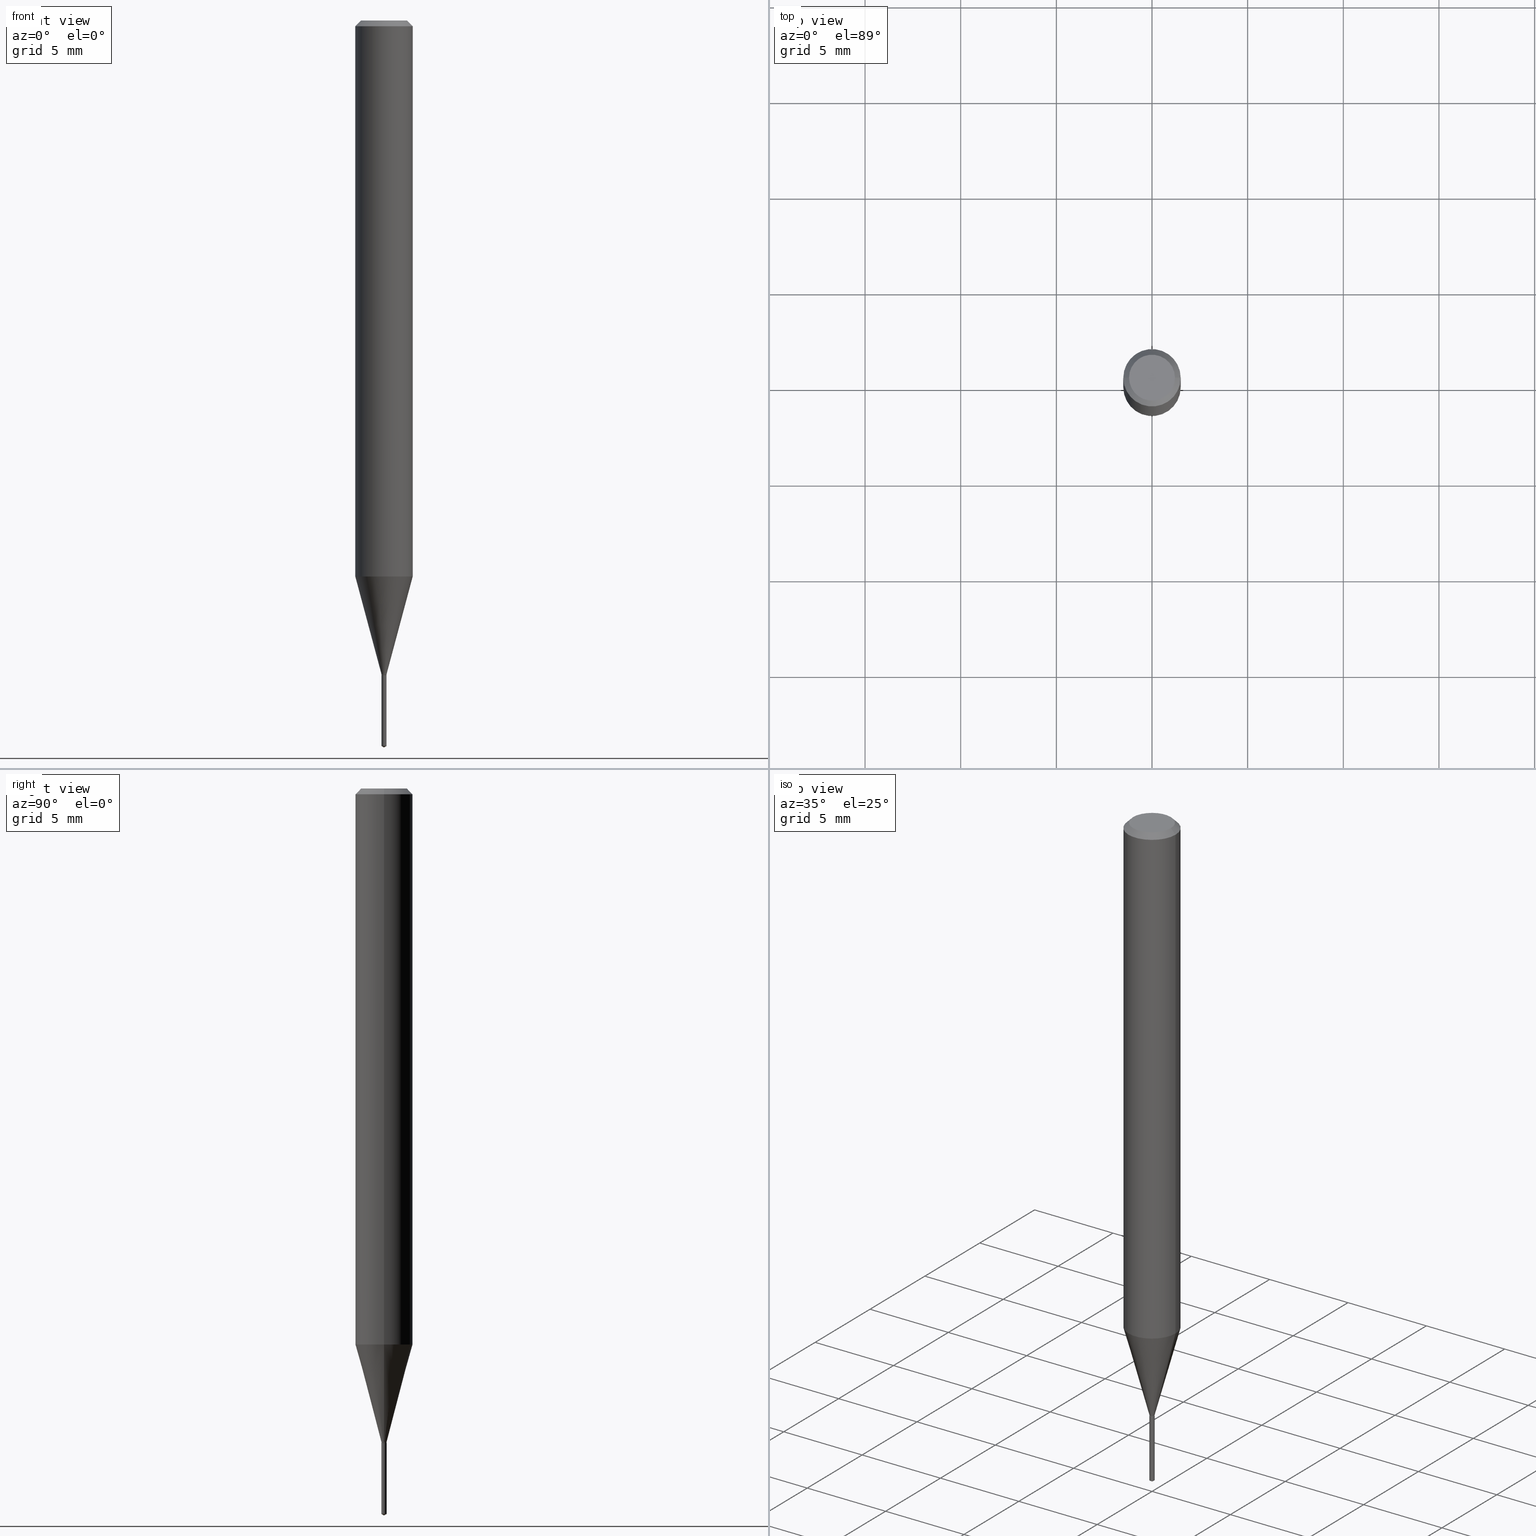
[diagram: canonical four-view strip — front | top / right | iso, engineering-drawing reading convention]
A machine part, canonical four-view strip (front | top / right | iso — engineering-drawing reading convention). The complete STEP part file that produces these views, byte-faithful:
ISO-10303-21;
HEADER;
FILE_DESCRIPTION (( 'STEP AP203' ),
    '1' );
FILE_NAME ('08251.STEP',
    '2024-04-24T13:56:38',
    ( '' ),
    ( '' ),
    'SwSTEP 2.0',
    'SolidWorks 2023',
    '' );
FILE_SCHEMA (( 'CONFIG_CONTROL_DESIGN' ));
ENDSEC;

DATA;
#1 = CONICAL_SURFACE ( 'NONE', #304, 0.005300000000000000891, 0.2617993877991500740 ) ;
#2 = AXIS2_PLACEMENT_3D ( 'NONE', #376, #185, #219 ) ;
#3 = ORIENTED_EDGE ( 'NONE', *, *, #51, .F. ) ;
#4 = CARTESIAN_POINT ( 'NONE',  ( -9.243706076077827560E-28, 1.324977446606160207E-13, 37.87397874015748300 ) ) ;
#5 =( NAMED_UNIT ( * ) SI_UNIT ( $, .STERADIAN. ) SOLID_ANGLE_UNIT ( ) );
#6 = VERTEX_POINT ( 'NONE', #46 ) ;
#7 = DIRECTION ( 'NONE',  ( -2.445468806185136597E-29, 3.491481338843145583E-15, 1.000000000000000000 ) ) ;
#8 = ORIENTED_EDGE ( 'NONE', *, *, #466, .T. ) ;
#9 = VECTOR ( 'NONE', #86, 39.37007874015747433 ) ;
#10 = EDGE_CURVE ( 'NONE', #460, #453, #215, .T. ) ;
#11 = CONICAL_SURFACE ( 'NONE', #127, 0.05904999999999999832, 0.7853981633974452814 ) ;
#12 = DIRECTION ( 'NONE',  ( -2.445468806185136597E-29, 3.491481338843145583E-15, 1.000000000000000000 ) ) ;
#13 =( CONVERSION_BASED_UNIT ( 'INCH', #428 ) LENGTH_UNIT ( ) NAMED_UNIT ( #345 ) );
#14 = ORIENTED_EDGE ( 'NONE', *, *, #147, .T. ) ;
#15 = DIRECTION ( 'NONE',  ( -2.445468806185136597E-29, 3.491481338843145583E-15, 1.000000000000000000 ) ) ;
#16 = COORDINATED_UNIVERSAL_TIME_OFFSET ( 5, 0, .BEHIND. ) ;
#17 = ORIENTED_EDGE ( 'NONE', *, *, #410, .F. ) ;
#18 = PLANE ( 'NONE',  #472 ) ;
#19 = EDGE_CURVE ( 'NONE', #437, #168, #110, .T. ) ;
#20 = PERSON_AND_ORGANIZATION ( #152, #301 ) ;
#21 = EDGE_LOOP ( 'NONE', ( #91, #379, #171, #382 ) ) ;
#22 = PRODUCT_DEFINITION_FORMATION_WITH_SPECIFIED_SOURCE ( 'ANY', '', #275, .NOT_KNOWN. ) ;
#23 = CARTESIAN_POINT ( 'NONE',  ( 3.651701478754116394E-29, -5.233578651353380400E-15, -1.496099999999999985 ) ) ;
#24 = SHAPE_DEFINITION_REPRESENTATION ( #316, #328 ) ;
#25 = CARTESIAN_POINT ( 'NONE',  ( -0.004800000000000000447, -4.664524344261699084E-15, -1.346499999999999586 ) ) ;
#26 = PERSON_AND_ORGANIZATION ( #152, #301 ) ;
#27 = DIRECTION ( 'NONE',  ( 1.000000000000000000, -6.982962677686350330E-15, 0.000000000000000000 ) ) ;
#28 = DATE_AND_TIME ( #53, #179 ) ;
#29 = DIRECTION ( 'NONE',  ( -2.445468806185136597E-29, 3.491481338843145583E-15, 1.000000000000000000 ) ) ;
#30 = EDGE_CURVE ( 'NONE', #343, #54, #137, .T. ) ;
#31 = CIRCLE ( 'NONE', #210, 0.005300000000000000891 ) ;
#32 = CARTESIAN_POINT ( 'NONE',  ( 0.004800000000000000447, -4.734797843605188150E-15, -1.346499999999999586 ) ) ;
#33 = ADVANCED_FACE ( 'NONE', ( #174 ), #1, .T. ) ;
#34 = CARTESIAN_POINT ( 'NONE',  ( -3.700970219170428424E-17, -0.005300000000004701992, -1.346500000000000030 ) ) ;
#35 = AXIS2_PLACEMENT_3D ( 'NONE', #52, #463, #201 ) ;
#36 = SECURITY_CLASSIFICATION ( '', '', #400 ) ;
#37 = EDGE_LOOP ( 'NONE', ( #8, #322 ) ) ;
#38 = CARTESIAN_POINT ( 'NONE',  ( 3.765876499531823880E-17, 0.005299999999995298923, -1.346500000000000030 ) ) ;
#39 = ORIENTED_EDGE ( 'NONE', *, *, #274, .T. ) ;
#40 = AXIS2_PLACEMENT_3D ( 'NONE', #255, #287, #474 ) ;
#41 = ORIENTED_EDGE ( 'NONE', *, *, #356, .T. ) ;
#42 = FACE_OUTER_BOUND ( 'NONE', #417, .T. ) ;
#43 = LINE ( 'NONE', #347, #193 ) ;
#44 = ORIENTED_EDGE ( 'NONE', *, *, #217, .F. ) ;
#45 = CYLINDRICAL_SURFACE ( 'NONE', #192, 0.05905000000000006771 ) ;
#46 = CARTESIAN_POINT ( 'NONE',  ( 3.651701478754116394E-29, -5.233578651353380400E-15, -1.496099999999999985 ) ) ;
#47 = AXIS2_PLACEMENT_3D ( 'NONE', #435, #7, #134 ) ;
#48 = DIRECTION ( 'NONE',  ( 0.2588190451025213501, 1.565188264969621968E-15, 0.9659258262890682012 ) ) ;
#49 = ORIENTED_EDGE ( 'NONE', *, *, #119, .F. ) ;
#50 = ORIENTED_EDGE ( 'NONE', *, *, #331, .F. ) ;
#51 = EDGE_CURVE ( 'NONE', #54, #343, #187, .T. ) ;
#52 = CARTESIAN_POINT ( 'NONE',  ( 5.680607918532201956E-28, 7.193274794951707985E-14, -1.346500000000000030 ) ) ;
#53 = CALENDAR_DATE ( 2024, 24, 4 ) ;
#54 = VERTEX_POINT ( 'NONE', #144 ) ;
#55 = DIRECTION ( 'NONE',  ( -2.445468806185136597E-29, 3.491481338843145583E-15, 1.000000000000000000 ) ) ;
#56 = PERSON_AND_ORGANIZATION_ROLE ( 'classification_officer' ) ;
#57 = DIRECTION ( 'NONE',  ( 1.000000000000000000, -6.982962677686350330E-15, 0.000000000000000000 ) ) ;
#58 = AXIS2_PLACEMENT_3D ( 'NONE', #95, #389, #270 ) ;
#59 = LOCAL_TIME ( 9, 56, 38.00000000000000000, #405 ) ;
#60 = CARTESIAN_POINT ( 'NONE',  ( -0.05905000000000006771, 4.195754854663396409E-16, -2.904631170795525045E-30 ) ) ;
#61 = CALENDAR_DATE ( 2024, 24, 4 ) ;
#62 = DIRECTION ( 'NONE',  ( -6.982962677686265133E-15, -1.000000000000000000, 0.000000000000000000 ) ) ;
#63 = EDGE_CURVE ( 'NONE', #168, #437, #76, .T. ) ;
#64 = CARTESIAN_POINT ( 'NONE',  ( 2.798355503914224078E-29, -3.995310018534680444E-15, -1.144302269093172786 ) ) ;
#65 = PLANE ( 'NONE',  #162 ) ;
#66 = DIRECTION ( 'NONE',  ( -1.000000000000000000, 6.982962677686266711E-15, 0.000000000000000000 ) ) ;
#67 = CARTESIAN_POINT ( 'NONE',  ( 3.292823747528286589E-29, -4.701279622752295282E-15, -1.346500000000000030 ) ) ;
#68 = DIRECTION ( 'NONE',  ( -2.440813768300325128E-29, 3.498147618042497959E-15, 1.000000000000000000 ) ) ;
#69 = AXIS2_PLACEMENT_3D ( 'NONE', #350, #15, #438 ) ;
#70 = AXIS2_PLACEMENT_3D ( 'NONE', #420, #308, #424 ) ;
#71 = CARTESIAN_POINT ( 'NONE',  ( 0.05904999999999999832, -4.535783407291118600E-16, -0.01181000000000007044 ) ) ;
#72 = APPROVAL ( #329, 'UNSPECIFIED' ) ;
#73 = FACE_OUTER_BOUND ( 'NONE', #249, .T. ) ;
#74 =( LENGTH_UNIT ( ) NAMED_UNIT ( * ) SI_UNIT ( $, .METRE. ) );
#75 = ORIENTED_EDGE ( 'NONE', *, *, #367, .T. ) ;
#76 = CIRCLE ( 'NONE', #299, 0.04724000000000000421 ) ;
#77 = ORIENTED_EDGE ( 'NONE', *, *, #395, .F. ) ;
#78 =( NAMED_UNIT ( * ) PLANE_ANGLE_UNIT ( ) SI_UNIT ( $, .RADIAN. ) );
#79 = ADVANCED_FACE ( 'NONE', ( #327 ), #154, .T. ) ;
#80 = VERTEX_POINT ( 'NONE', #32 ) ;
#81 = CARTESIAN_POINT ( 'NONE',  ( 0.05904999999999999832, -4.463468013801466955E-16, -0.01181000000000007044 ) ) ;
#82 = DIRECTION ( 'NONE',  ( -6.982962677686265133E-15, -1.000000000000000000, 3.468864327941663240E-15 ) ) ;
#83 = ORIENTED_EDGE ( 'NONE', *, *, #142, .T. ) ;
#84 = AXIS2_PLACEMENT_3D ( 'NONE', #64, #296, #371 ) ;
#85 = PRODUCT_RELATED_PRODUCT_CATEGORY ( 'detail', '', ( #275 ) ) ;
#86 = DIRECTION ( 'NONE',  ( -0.2588190451025213501, 5.211531920934551042E-15, 0.9659258262890682012 ) ) ;
#87 = DIRECTION ( 'NONE',  ( -6.982962677686265133E-15, -1.000000000000000000, 0.000000000000000000 ) ) ;
#88 = ORIENTED_EDGE ( 'NONE', *, *, #234, .F. ) ;
#89 = LINE ( 'NONE', #161, #222 ) ;
#90 = DATE_AND_TIME ( #212, #305 ) ;
#91 = ORIENTED_EDGE ( 'NONE', *, *, #19, .F. ) ;
#92 = ADVANCED_FACE ( 'NONE', ( #366 ), #65, .F. ) ;
#93 = AXIS2_PLACEMENT_3D ( 'NONE', #423, #12, #236 ) ;
#94 = VECTOR ( 'NONE', #482, 39.37007874015748143 ) ;
#95 = CARTESIAN_POINT ( 'NONE',  ( 3.650196566245729172E-29, -5.213462440952350425E-15, -1.492915438719153887 ) ) ;
#96 = PERSON_AND_ORGANIZATION_ROLE ( 'creator' ) ;
#97 = DIRECTION ( 'NONE',  ( 2.438088387897960049E-29, -3.491481338843145188E-15, -1.000000000000000000 ) ) ;
#98 = COORDINATED_UNIVERSAL_TIME_OFFSET ( 5, 0, .BEHIND. ) ;
#99 = CARTESIAN_POINT ( 'NONE',  ( -0.05904999999999999832, 3.711095515056362547E-16, -0.01181000000000007044 ) ) ;
#100 = CARTESIAN_POINT ( 'NONE',  ( 3.292823747528286589E-29, -4.701279622752295282E-15, -1.346500000000000030 ) ) ;
#101 = DATE_AND_TIME ( #132, #434 ) ;
#102 = CARTESIAN_POINT ( 'NONE',  ( 3.291601013125194348E-29, -4.699533882082873778E-15, -1.346000000000000085 ) ) ;
#103 = CIRCLE ( 'NONE', #69, 0.004800000000000000447 ) ;
#104 = VECTOR ( 'NONE', #151, 39.37007874015748143 ) ;
#105 = ADVANCED_FACE ( 'NONE', ( #107 ), #481, .T. ) ;
#106 = PERSON_AND_ORGANIZATION ( #152, #301 ) ;
#107 = FACE_OUTER_BOUND ( 'NONE', #318, .T. ) ;
#108 = DIRECTION ( 'NONE',  ( 1.000000000000000000, -6.982962677686266711E-15, 4.876185090822587894E-29 ) ) ;
#109 = EDGE_CURVE ( 'NONE', #469, #453, #282, .T. ) ;
#110 = CIRCLE ( 'NONE', #237, 0.04724000000000000421 ) ;
#111 = APPROVAL_PERSON_ORGANIZATION ( #20, #336, #290 ) ;
#112 = DIRECTION ( 'NONE',  ( -6.982962677686265133E-15, -1.000000000000000000, 0.000000000000000000 ) ) ;
#113 = ORIENTED_EDGE ( 'NONE', *, *, #207, .F. ) ;
#114 = DESIGN_CONTEXT ( 'detailed design', #489, 'design' ) ;
#115 = VERTEX_POINT ( 'NONE', #141 ) ;
#116 = VERTEX_POINT ( 'NONE', #25 ) ;
#117 = CLOSED_SHELL ( 'NONE', ( #440, #381, #150, #33, #292, #105, #483, #188, #320, #200, #191, #490 ) ) ;
#118 = VECTOR ( 'NONE', #48, 39.37007874015747433 ) ;
#119 = EDGE_CURVE ( 'NONE', #80, #116, #411, .T. ) ;
#120 = CIRCLE ( 'NONE', #224, 0.005300000000000000891 ) ;
#121 = VERTEX_POINT ( 'NONE', #484 ) ;
#122 = FACE_OUTER_BOUND ( 'NONE', #351, .T. ) ;
#123 = ORIENTED_EDGE ( 'NONE', *, *, #298, .F. ) ;
#124 = EDGE_CURVE ( 'NONE', #230, #115, #269, .T. ) ;
#125 = AXIS2_PLACEMENT_3D ( 'NONE', #182, #372, #145 ) ;
#126 = ORIENTED_EDGE ( 'NONE', *, *, #306, .T. ) ;
#127 = AXIS2_PLACEMENT_3D ( 'NONE', #412, #409, #66 ) ;
#128 = CARTESIAN_POINT ( 'NONE',  ( 3.292823747528286589E-29, -4.701279622752295282E-15, -1.346500000000000030 ) ) ;
#129 = DIRECTION ( 'NONE',  ( 1.000000000000000000, -6.982962677686264344E-15, 0.000000000000000000 ) ) ;
#130 = EDGE_LOOP ( 'NONE', ( #286, #41, #445, #77 ) ) ;
#131 = CARTESIAN_POINT ( 'NONE',  ( 3.650196566245729172E-29, -5.213462440952350425E-15, -1.492915438719153887 ) ) ;
#132 = CALENDAR_DATE ( 2024, 24, 4 ) ;
#133 = ORIENTED_EDGE ( 'NONE', *, *, #166, .F. ) ;
#134 = DIRECTION ( 'NONE',  ( 1.000000000000000000, -6.982962677686266711E-15, 0.000000000000000000 ) ) ;
#135 = PERSON_AND_ORGANIZATION ( #152, #301 ) ;
#136 = ORIENTED_EDGE ( 'NONE', *, *, #342, .F. ) ;
#137 = CIRCLE ( 'NONE', #415, 0.005300000000000000891 ) ;
#138 = ORIENTED_EDGE ( 'NONE', *, *, #109, .F. ) ;
#139 = CYLINDRICAL_SURFACE ( 'NONE', #229, 0.005300000000000000891 ) ;
#140 = DIRECTION ( 'NONE',  ( 6.982962677686265922E-15, 1.000000000000000000, -3.498147618042497959E-15 ) ) ;
#141 = CARTESIAN_POINT ( 'NONE',  ( -3.700970219170428424E-17, -0.005300000000004701992, -1.346500000000000030 ) ) ;
#142 = EDGE_CURVE ( 'NONE', #168, #453, #441, .T. ) ;
#143 = PERSON_AND_ORGANIZATION ( #152, #301 ) ;
#144 = CARTESIAN_POINT ( 'NONE',  ( 0.005300000000000000891, -4.736543584274611232E-15, -1.346000000000000085 ) ) ;
#145 = DIRECTION ( 'NONE',  ( 1.000000000000000000, -6.982962677686265133E-15, 4.876176775795935793E-29 ) ) ;
#146 = DIRECTION ( 'NONE',  ( 1.000000000000000000, -6.982962677686350330E-15, 0.000000000000000000 ) ) ;
#147 = EDGE_CURVE ( 'NONE', #6, #432, #248, .T. ) ;
#148 = AXIS2_PLACEMENT_3D ( 'NONE', #289, #325, #62 ) ;
#149 = DIRECTION ( 'NONE',  ( 1.000000000000000000, -6.982962677686250933E-15, 0.000000000000000000 ) ) ;
#150 = ADVANCED_FACE ( 'NONE', ( #293 ), #45, .T. ) ;
#151 = DIRECTION ( 'NONE',  ( -0.7071067811868120279, 7.493145998871310260E-15, 0.7071067811862831176 ) ) ;
#152 = PERSON ( 'UNSPECIFIED', 'UNSPECIFIED', 'UNSPECIFIED', ('UNSPECIFIED'), ('UNSPECIFIED'), ('UNSPECIFIED') ) ;
#153 = EDGE_LOOP ( 'NONE', ( #136, #186, #83, #333 ) ) ;
#154 = CONICAL_SURFACE ( 'NONE', #311, 65.52281426576712420, 1.029744258676645652 ) ;
#155 = APPROVAL_PERSON_ORGANIZATION ( #135, #175, #170 ) ;
#156 = LINE ( 'NONE', #385, #104 ) ;
#157 = CC_DESIGN_DATE_AND_TIME_ASSIGNMENT ( #90, #402, ( #284 ) ) ;
#158 = DIRECTION ( 'NONE',  ( -2.440813768300325128E-29, 3.498147618042497959E-15, 1.000000000000000000 ) ) ;
#159 = EDGE_LOOP ( 'NONE', ( #349, #394, #386, #240 ) ) ;
#160 = EDGE_LOOP ( 'NONE', ( #273, #225 ) ) ;
#161 = CARTESIAN_POINT ( 'NONE',  ( 0.005300000000000000891, -3.700970219173721302E-17, 2.584373691171846264E-31 ) ) ;
#162 = AXIS2_PLACEMENT_3D ( 'NONE', #213, #403, #140 ) ;
#163 = ORIENTED_EDGE ( 'NONE', *, *, #331, .T. ) ;
#164 = CC_DESIGN_APPROVAL ( #175, ( #36 ) ) ;
#165 = LINE ( 'NONE', #393, #9 ) ;
#166 = EDGE_CURVE ( 'NONE', #116, #80, #103, .T. ) ;
#167 = CYLINDRICAL_SURFACE ( 'NONE', #352, 0.05905000000000006771 ) ;
#168 = VERTEX_POINT ( 'NONE', #285 ) ;
#169 = DIRECTION ( 'NONE',  ( -1.000000000000000000, 6.982962677686265922E-15, -4.876176775795935793E-29 ) ) ;
#170 = APPROVAL_ROLE ( '' ) ;
#171 = ORIENTED_EDGE ( 'NONE', *, *, #109, .T. ) ;
#172 = VECTOR ( 'NONE', #184, 39.37007874015748143 ) ;
#173 = CARTESIAN_POINT ( 'NONE',  ( -0.005300000000000000891, 3.765876499528531618E-17, -2.607035597835100114E-31 ) ) ;
#174 = FACE_OUTER_BOUND ( 'NONE', #300, .T. ) ;
#175 = APPROVAL ( #358, 'UNSPECIFIED' ) ;
#176 = APPROVAL_DATE_TIME ( #288, #336 ) ;
#177 = DIRECTION ( 'NONE',  ( 1.000000000000000000, -6.982962677686266711E-15, 4.876185090822587894E-29 ) ) ;
#178 = CARTESIAN_POINT ( 'NONE',  ( 8.265746106709734507E-48, -1.180129479067563789E-33, -3.380025165646692144E-19 ) ) ;
#179 = LOCAL_TIME ( 9, 56, 38.00000000000000000, #238 ) ;
#180 = LINE ( 'NONE', #81, #218 ) ;
#181 = EDGE_CURVE ( 'NONE', #343, #121, #427, .T. ) ;
#182 = CARTESIAN_POINT ( 'NONE',  ( 0.000000000000000000, 0.000000000000000000, 0.000000000000000000 ) ) ;
#183 = FACE_OUTER_BOUND ( 'NONE', #335, .T. ) ;
#184 = DIRECTION ( 'NONE',  ( -2.440813768300325128E-29, 3.498147618042497959E-15, 1.000000000000000000 ) ) ;
#185 = DIRECTION ( 'NONE',  ( -2.445468806185136597E-29, 3.491481338843145583E-15, 1.000000000000000000 ) ) ;
#186 = ORIENTED_EDGE ( 'NONE', *, *, #63, .F. ) ;
#187 = CIRCLE ( 'NONE', #486, 0.005300000000000000891 ) ;
#188 = ADVANCED_FACE ( 'NONE', ( #323 ), #167, .T. ) ;
#189 = ORIENTED_EDGE ( 'NONE', *, *, #410, .T. ) ;
#190 = MANIFOLD_SOLID_BREP ( 'Body-Move/Copy2[1]', #344 ) ;
#191 = ADVANCED_FACE ( 'NONE', ( #241 ), #233, .F. ) ;
#192 = AXIS2_PLACEMENT_3D ( 'NONE', #246, #429, #467 ) ;
#193 = VECTOR ( 'NONE', #226, 39.37007874015748143 ) ;
#194 = CARTESIAN_POINT ( 'NONE',  ( 4.132873053354867254E-48, -5.900647395337818946E-34, -1.690012582823346072E-19 ) ) ;
#195 = ORIENTED_EDGE ( 'NONE', *, *, #414, .T. ) ;
#196 = LINE ( 'NONE', #451, #94 ) ;
#197 = CARTESIAN_POINT ( 'NONE',  ( -3.700970219170072204E-17, -0.005300000000005215470, -1.492915438719153887 ) ) ;
#198 = CIRCLE ( 'NONE', #84, 0.05905000000000013710 ) ;
#199 = ORIENTED_EDGE ( 'NONE', *, *, #124, .F. ) ;
#200 = ADVANCED_FACE ( 'NONE', ( #203 ), #18, .F. ) ;
#201 = DIRECTION ( 'NONE',  ( 1.000000000000000000, -6.982962677686265922E-15, 4.876176775795935793E-29 ) ) ;
#202 = ORIENTED_EDGE ( 'NONE', *, *, #10, .F. ) ;
#203 = FACE_OUTER_BOUND ( 'NONE', #160, .T. ) ;
#204 = APPROVAL_DATE_TIME ( #101, #175 ) ;
#205 = VERTEX_POINT ( 'NONE', #197 ) ;
#206 = DIRECTION ( 'NONE',  ( -6.982962677686265133E-15, -1.000000000000000000, 0.000000000000000000 ) ) ;
#207 = EDGE_CURVE ( 'NONE', #121, #390, #31, .T. ) ;
#208 = PERSON_AND_ORGANIZATION_ROLE ( 'design_owner' ) ;
#209 = DIRECTION ( 'NONE',  ( 6.090539988449746092E-15, 0.8571673007021094470, 0.5150380749100585964 ) ) ;
#210 = AXIS2_PLACEMENT_3D ( 'NONE', #399, #55, #276 ) ;
#211 = CONICAL_SURFACE ( 'NONE', #480, 0.004800000000000000447, 0.7853981633978223131 ) ;
#212 = CALENDAR_DATE ( 2024, 24, 4 ) ;
#213 = CARTESIAN_POINT ( 'NONE',  ( 3.292823747528286589E-29, -4.701279622752295282E-15, -1.346500000000000030 ) ) ;
#214 = DIRECTION ( 'NONE',  ( -6.982962677686265133E-15, -1.000000000000000000, 3.468864327941663240E-15 ) ) ;
#215 = LINE ( 'NONE', #60, #216 ) ;
#216 = VECTOR ( 'NONE', #291, 39.37007874015748143 ) ;
#217 = EDGE_CURVE ( 'NONE', #205, #432, #258, .T. ) ;
#218 = VECTOR ( 'NONE', #228, 39.37007874015748143 ) ;
#219 = DIRECTION ( 'NONE',  ( 1.000000000000000000, -6.982962677686350330E-15, 0.000000000000000000 ) ) ;
#220 = CARTESIAN_POINT ( 'NONE',  ( 0.005300000000000000891, -4.732702954801883924E-15, -1.344899999999999984 ) ) ;
#221 = ORIENTED_EDGE ( 'NONE', *, *, #395, .T. ) ;
#222 = VECTOR ( 'NONE', #281, 39.37007874015748143 ) ;
#223 = CARTESIAN_POINT ( 'NONE',  ( 3.292823747528285468E-29, -4.701279622752294493E-15, -1.346499999999999586 ) ) ;
#224 = AXIS2_PLACEMENT_3D ( 'NONE', #259, #294, #146 ) ;
#225 = ORIENTED_EDGE ( 'NONE', *, *, #19, .T. ) ;
#226 = DIRECTION ( 'NONE',  ( 0.7071067811868120279, -2.468850131085027146E-15, 0.7071067811862831176 ) ) ;
#227 = ADVANCED_FACE ( 'NONE', ( #312 ), #139, .T. ) ;
#228 = DIRECTION ( 'NONE',  ( 0.7071067811865453523, -7.319954787623248157E-15, -0.7071067811865496822 ) ) ;
#229 = AXIS2_PLACEMENT_3D ( 'NONE', #128, #362, #87 ) ;
#230 = VERTEX_POINT ( 'NONE', #470 ) ;
#231 = LINE ( 'NONE', #387, #118 ) ;
#232 = EDGE_LOOP ( 'NONE', ( #418, #195, #3, #267 ) ) ;
#233 = PLANE ( 'NONE',  #35 ) ;
#234 = EDGE_CURVE ( 'NONE', #453, #469, #450, .T. ) ;
#235 = EDGE_LOOP ( 'NONE', ( #244, #14, #44 ) ) ;
#236 = DIRECTION ( 'NONE',  ( 1.000000000000000000, -6.982962677686265133E-15, 4.876176775795935793E-29 ) ) ;
#237 = AXIS2_PLACEMENT_3D ( 'NONE', #446, #330, #177 ) ;
#238 = COORDINATED_UNIVERSAL_TIME_OFFSET ( 5, 0, .BEHIND. ) ;
#239 = VECTOR ( 'NONE', #465, 39.37007874015748143 ) ;
#240 = ORIENTED_EDGE ( 'NONE', *, *, #274, .F. ) ;
#241 = FACE_OUTER_BOUND ( 'NONE', #302, .T. ) ;
#242 = PERSON_AND_ORGANIZATION ( #152, #301 ) ;
#243 = ORIENTED_EDGE ( 'NONE', *, *, #30, .F. ) ;
#244 = ORIENTED_EDGE ( 'NONE', *, *, #257, .F. ) ;
#245 = CC_DESIGN_PERSON_AND_ORGANIZATION_ASSIGNMENT ( #430, #96, ( #284 ) ) ;
#246 = CARTESIAN_POINT ( 'NONE',  ( 0.000000000000000000, 0.000000000000000000, 0.000000000000000000 ) ) ;
#247 = APPROVAL_ROLE ( '' ) ;
#248 = LINE ( 'NONE', #401, #251 ) ;
#249 = EDGE_LOOP ( 'NONE', ( #123, #277, #126, #50 ) ) ;
#250 = DIRECTION ( 'NONE',  ( -2.445468806185136597E-29, 3.491481338843145583E-15, 1.000000000000000000 ) ) ;
#251 = VECTOR ( 'NONE', #209, 39.37007874015748854 ) ;
#252 = CC_DESIGN_APPROVAL ( #336, ( #284 ) ) ;
#253 = DIRECTION ( 'NONE',  ( -6.982962677686265133E-15, -1.000000000000000000, 0.000000000000000000 ) ) ;
#254 = APPLICATION_PROTOCOL_DEFINITION ( 'international standard', 'config_control_design', 1994, #489 ) ;
#255 = CARTESIAN_POINT ( 'NONE',  ( 2.888098660104663766E-31, -4.123439461173779647E-17, -0.01181000000000007044 ) ) ;
#256 = DIRECTION ( 'NONE',  ( -2.445468806185136597E-29, 3.491481338843145583E-15, 1.000000000000000000 ) ) ;
#257 = EDGE_CURVE ( 'NONE', #6, #205, #473, .T. ) ;
#258 = CIRCLE ( 'NONE', #378, 0.005300000000000001758 ) ;
#259 = CARTESIAN_POINT ( 'NONE',  ( 3.288910997438389961E-29, -4.695693252610146470E-15, -1.344899999999999984 ) ) ;
#260 = ORIENTED_EDGE ( 'NONE', *, *, #374, .T. ) ;
#261 = CC_DESIGN_DATE_AND_TIME_ASSIGNMENT ( #28, #468, ( #36 ) ) ;
#262 = EDGE_LOOP ( 'NONE', ( #189, #263, #138, #314 ) ) ;
#263 = ORIENTED_EDGE ( 'NONE', *, *, #10, .T. ) ;
#264 = AXIS2_PLACEMENT_3D ( 'NONE', #332, #250, #334 ) ;
#265 = EDGE_CURVE ( 'NONE', #432, #205, #442, .T. ) ;
#266 = APPLICATION_PROTOCOL_DEFINITION ( 'international standard', 'config_control_design', 1994, #388 ) ;
#267 = ORIENTED_EDGE ( 'NONE', *, *, #419, .F. ) ;
#268 = FACE_OUTER_BOUND ( 'NONE', #232, .T. ) ;
#269 = CIRCLE ( 'NONE', #148, 0.005300000000000000891 ) ;
#270 = DIRECTION ( 'NONE',  ( -6.982962677686265133E-15, -1.000000000000000000, 0.000000000000000000 ) ) ;
#271 = AXIS2_PLACEMENT_3D ( 'NONE', #4, #158, #82 ) ;
#272 = CARTESIAN_POINT ( 'NONE',  ( 0.04724000000000000421, -3.852183633974369345E-16, -3.380025165621689721E-19 ) ) ;
#273 = ORIENTED_EDGE ( 'NONE', *, *, #63, .T. ) ;
#274 = EDGE_CURVE ( 'NONE', #54, #390, #89, .T. ) ;
#275 = PRODUCT ( '08251', '08251', '', ( #436 ) ) ;
#276 = DIRECTION ( 'NONE',  ( 1.000000000000000000, -6.982962677686350330E-15, 0.000000000000000000 ) ) ;
#277 = ORIENTED_EDGE ( 'NONE', *, *, #207, .T. ) ;
#278 = LINE ( 'NONE', #38, #239 ) ;
#279 = CYLINDRICAL_SURFACE ( 'NONE', #93, 0.005300000000000000891 ) ;
#280 = CALENDAR_DATE ( 2024, 24, 4 ) ;
#281 = DIRECTION ( 'NONE',  ( -2.445468806185136877E-29, 3.491481338843145188E-15, 1.000000000000000000 ) ) ;
#282 = CIRCLE ( 'NONE', #40, 0.05904999999999999832 ) ;
#283 = CC_DESIGN_SECURITY_CLASSIFICATION ( #36, ( #22 ) ) ;
#284 = PRODUCT_DEFINITION ( 'UNKNOWN', '', #22, #114 ) ;
#285 = CARTESIAN_POINT ( 'NONE',  ( -0.04724000000000000421, 3.504923541997677355E-16, -3.380025165670481712E-19 ) ) ;
#286 = ORIENTED_EDGE ( 'NONE', *, *, #217, .T. ) ;
#287 = DIRECTION ( 'NONE',  ( -2.445468806185136597E-29, 3.491481338843145583E-15, 1.000000000000000000 ) ) ;
#288 = DATE_AND_TIME ( #61, #59 ) ;
#289 = CARTESIAN_POINT ( 'NONE',  ( 3.292823747528286589E-29, -4.701279622752295282E-15, -1.346500000000000030 ) ) ;
#290 = APPROVAL_ROLE ( '' ) ;
#291 = DIRECTION ( 'NONE',  ( -2.445468806185136877E-29, 3.491481338843145188E-15, 1.000000000000000000 ) ) ;
#292 = ADVANCED_FACE ( 'NONE', ( #353 ), #279, .T. ) ;
#293 = FACE_OUTER_BOUND ( 'NONE', #262, .T. ) ;
#294 = DIRECTION ( 'NONE',  ( -2.445468806185136597E-29, 3.491481338843145583E-15, 1.000000000000000000 ) ) ;
#295 = DIRECTION ( 'NONE',  ( -2.445468806185136597E-29, 3.491481338843145583E-15, 1.000000000000000000 ) ) ;
#296 = DIRECTION ( 'NONE',  ( -2.445468806185136597E-29, 3.491481338843145583E-15, 1.000000000000000000 ) ) ;
#297 = DIRECTION ( 'NONE',  ( -2.445468806185136597E-29, 3.491481338843145583E-15, 1.000000000000000000 ) ) ;
#298 = EDGE_CURVE ( 'NONE', #121, #460, #165, .T. ) ;
#299 = AXIS2_PLACEMENT_3D ( 'NONE', #178, #256, #108 ) ;
#300 = EDGE_LOOP ( 'NONE', ( #260, #361, #17, #315 ) ) ;
#301 = ORGANIZATION ( 'UNSPECIFIED', 'UNSPECIFIED', '' ) ;
#302 = EDGE_LOOP ( 'NONE', ( #49, #133 ) ) ;
#303 = DIRECTION ( 'NONE',  ( 1.000000000000000000, -6.982962677686250933E-15, 0.000000000000000000 ) ) ;
#304 = AXIS2_PLACEMENT_3D ( 'NONE', #444, #365, #27 ) ;
#305 = LOCAL_TIME ( 9, 56, 38.00000000000000000, #443 ) ;
#306 = EDGE_CURVE ( 'NONE', #390, #426, #231, .T. ) ;
#307 = CARTESIAN_POINT ( 'NONE',  ( 3.765876499532182565E-17, 0.005299999999994787180, -1.492915438719153887 ) ) ;
#308 = DIRECTION ( 'NONE',  ( 0.000000000000000000, 0.000000000000000000, 1.000000000000000000 ) ) ;
#309 = ORIENTED_EDGE ( 'NONE', *, *, #419, .T. ) ;
#310 = ADVANCED_FACE ( 'NONE', ( #42 ), #357, .T. ) ;
#311 = AXIS2_PLACEMENT_3D ( 'NONE', #477, #408, #214 ) ;
#312 = FACE_OUTER_BOUND ( 'NONE', #130, .T. ) ;
#313 = AXIS2_PLACEMENT_3D ( 'NONE', #337, #487, #129 ) ;
#314 = ORIENTED_EDGE ( 'NONE', *, *, #367, .F. ) ;
#315 = ORIENTED_EDGE ( 'NONE', *, *, #306, .F. ) ;
#316 = PRODUCT_DEFINITION_SHAPE ( 'NONE', 'NONE',  #284 ) ;
#317 = DIRECTION ( 'NONE',  ( -2.440813768300325128E-29, 3.498147618042497959E-15, 1.000000000000000000 ) ) ;
#318 = EDGE_LOOP ( 'NONE', ( #355, #398, #39, #113 ) ) ;
#319 = DIRECTION ( 'NONE',  ( -2.445468806185136597E-29, 3.491481338843145583E-15, 1.000000000000000000 ) ) ;
#320 = ADVANCED_FACE ( 'NONE', ( #447 ), #456, .T. ) ;
#321 = DATE_AND_TIME ( #280, #324 ) ;
#322 = ORIENTED_EDGE ( 'NONE', *, *, #124, .T. ) ;
#323 = FACE_OUTER_BOUND ( 'NONE', #416, .T. ) ;
#324 = LOCAL_TIME ( 9, 56, 38.00000000000000000, #98 ) ;
#325 = DIRECTION ( 'NONE',  ( -2.440813768300325128E-29, 3.498147618042497959E-15, 1.000000000000000000 ) ) ;
#326 = CARTESIAN_POINT ( 'NONE',  ( 0.000000000000000000, 0.000000000000000000, 0.000000000000000000 ) ) ;
#327 = FACE_OUTER_BOUND ( 'NONE', #235, .T. ) ;
#328 = ADVANCED_BREP_SHAPE_REPRESENTATION ( '08251', ( #190, #354, #70 ), #488 ) ;
#329 = APPROVAL_STATUS ( 'not_yet_approved' ) ;
#330 = DIRECTION ( 'NONE',  ( -2.445468806185136597E-29, 3.491481338843145583E-15, 1.000000000000000000 ) ) ;
#331 = EDGE_CURVE ( 'NONE', #460, #426, #198, .T. ) ;
#332 = CARTESIAN_POINT ( 'NONE',  ( 3.292823747528285468E-29, -4.701279622752294493E-15, -1.346499999999999586 ) ) ;
#333 = ORIENTED_EDGE ( 'NONE', *, *, #234, .T. ) ;
#334 = DIRECTION ( 'NONE',  ( 1.000000000000000000, -6.982962677686250933E-15, 0.000000000000000000 ) ) ;
#335 = EDGE_LOOP ( 'NONE', ( #359, #455, #309, #243 ) ) ;
#336 = APPROVAL ( #363, 'UNSPECIFIED' ) ;
#337 = CARTESIAN_POINT ( 'NONE',  ( 2.798355503914224078E-29, -3.995310018534680444E-15, -1.144302269093172786 ) ) ;
#338 = VECTOR ( 'NONE', #476, 39.37007874015748854 ) ;
#339 = ORIENTED_EDGE ( 'NONE', *, *, #265, .F. ) ;
#340 = CC_DESIGN_APPROVAL ( #72, ( #22 ) ) ;
#341 = ORIENTED_EDGE ( 'NONE', *, *, #257, .T. ) ;
#342 = EDGE_CURVE ( 'NONE', #437, #469, #180, .T. ) ;
#343 = VERTEX_POINT ( 'NONE', #459 ) ;
#344 = CLOSED_SHELL ( 'NONE', ( #227, #79, #431, #310, #92 ) ) ;
#345 = DIMENSIONAL_EXPONENTS ( 1.000000000000000000, 0.000000000000000000, 0.000000000000000000, 0.000000000000000000, 0.000000000000000000, 0.000000000000000000, 0.000000000000000000 ) ;
#346 = ORIENTED_EDGE ( 'NONE', *, *, #356, .F. ) ;
#347 = CARTESIAN_POINT ( 'NONE',  ( 0.004800000000000000447, -4.734797843605188150E-15, -1.346499999999999586 ) ) ;
#348 = CC_DESIGN_PERSON_AND_ORGANIZATION_ASSIGNMENT ( #471, #56, ( #36 ) ) ;
#349 = ORIENTED_EDGE ( 'NONE', *, *, #51, .T. ) ;
#350 = CARTESIAN_POINT ( 'NONE',  ( 3.292823747528285468E-29, -4.701279622752294493E-15, -1.346499999999999586 ) ) ;
#351 = EDGE_LOOP ( 'NONE', ( #464, #341, #339 ) ) ;
#352 = AXIS2_PLACEMENT_3D ( 'NONE', #326, #319, #360 ) ;
#353 = FACE_OUTER_BOUND ( 'NONE', #159, .T. ) ;
#354 = MANIFOLD_SOLID_BREP ( 'Body-Move/Copy2[2]', #117 ) ;
#355 = ORIENTED_EDGE ( 'NONE', *, *, #181, .F. ) ;
#356 = EDGE_CURVE ( 'NONE', #432, #230, #278, .T. ) ;
#357 = CYLINDRICAL_SURFACE ( 'NONE', #391, 0.005300000000000000891 ) ;
#358 = APPROVAL_STATUS ( 'not_yet_approved' ) ;
#359 = ORIENTED_EDGE ( 'NONE', *, *, #414, .F. ) ;
#360 = DIRECTION ( 'NONE',  ( 1.000000000000000000, -6.982962677686266711E-15, 4.876176775795936353E-29 ) ) ;
#361 = ORIENTED_EDGE ( 'NONE', *, *, #298, .T. ) ;
#362 = DIRECTION ( 'NONE',  ( -2.440813768300325128E-29, 3.498147618042497959E-15, 1.000000000000000000 ) ) ;
#363 = APPROVAL_STATUS ( 'not_yet_approved' ) ;
#364 = CONICAL_SURFACE ( 'NONE', #422, 0.004800000000000000447, 0.7853981633978223131 ) ;
#365 = DIRECTION ( 'NONE',  ( -2.445468806185136597E-29, 3.491481338843145583E-15, 1.000000000000000000 ) ) ;
#366 = FACE_OUTER_BOUND ( 'NONE', #37, .T. ) ;
#367 = EDGE_CURVE ( 'NONE', #426, #469, #196, .T. ) ;
#368 = DIRECTION ( 'NONE',  ( 2.445468806185136597E-29, -3.491481338843145583E-15, -1.000000000000000000 ) ) ;
#369 = PERSON_AND_ORGANIZATION_ROLE ( 'design_supplier' ) ;
#370 = DIRECTION ( 'NONE',  ( -0.7071067811865453523, 2.468850131082234184E-15, -0.7071067811865496822 ) ) ;
#371 = DIRECTION ( 'NONE',  ( 1.000000000000000000, -6.982962677686264344E-15, 0.000000000000000000 ) ) ;
#372 = DIRECTION ( 'NONE',  ( -2.445468806185136597E-29, 3.491481338843145583E-15, 1.000000000000000000 ) ) ;
#373 = CIRCLE ( 'NONE', #380, 0.005300000000000000891 ) ;
#374 = EDGE_CURVE ( 'NONE', #390, #121, #120, .T. ) ;
#375 = LINE ( 'NONE', #34, #172 ) ;
#376 = CARTESIAN_POINT ( 'NONE',  ( 3.288910997438389961E-29, -4.695693252610146470E-15, -1.344899999999999984 ) ) ;
#377 = UNCERTAINTY_MEASURE_WITH_UNIT (LENGTH_MEASURE( 1.000000000000000082E-05 ), #13, 'distance_accuracy_value', 'NONE');
#378 = AXIS2_PLACEMENT_3D ( 'NONE', #131, #317, #206 ) ;
#379 = ORIENTED_EDGE ( 'NONE', *, *, #342, .T. ) ;
#380 = AXIS2_PLACEMENT_3D ( 'NONE', #67, #449, #112 ) ;
#381 = ADVANCED_FACE ( 'NONE', ( #448 ), #11, .T. ) ;
#382 = ORIENTED_EDGE ( 'NONE', *, *, #142, .F. ) ;
#383 = CIRCLE ( 'NONE', #313, 0.05905000000000013710 ) ;
#384 = CC_DESIGN_PERSON_AND_ORGANIZATION_ASSIGNMENT ( #26, #369, ( #22 ) ) ;
#385 = CARTESIAN_POINT ( 'NONE',  ( -0.004800000000000000447, -4.667173571435809496E-15, -1.346499999999999586 ) ) ;
#386 = ORIENTED_EDGE ( 'NONE', *, *, #374, .F. ) ;
#387 = CARTESIAN_POINT ( 'NONE',  ( 0.005300000000000000891, -4.732702954801883924E-15, -1.344899999999999984 ) ) ;
#388 = APPLICATION_CONTEXT ( 'configuration controlled 3d designs of mechanical parts and assemblies' ) ;
#389 = DIRECTION ( 'NONE',  ( -2.440813768300325128E-29, 3.498147618042497959E-15, 1.000000000000000000 ) ) ;
#390 = VERTEX_POINT ( 'NONE', #220 ) ;
#391 = AXIS2_PLACEMENT_3D ( 'NONE', #100, #68, #253 ) ;
#392 = APPROVAL_PERSON_ORGANIZATION ( #242, #72, #247 ) ;
#393 = CARTESIAN_POINT ( 'NONE',  ( -0.005300000000000000891, -4.658034487614861364E-15, -1.344899999999999984 ) ) ;
#394 = ORIENTED_EDGE ( 'NONE', *, *, #181, .T. ) ;
#395 = EDGE_CURVE ( 'NONE', #205, #115, #375, .T. ) ;
#396 = DIRECTION ( 'NONE',  ( -2.445468806185136877E-29, 3.491481338843145188E-15, 1.000000000000000000 ) ) ;
#397 = PERSON_AND_ORGANIZATION_ROLE ( 'creator' ) ;
#398 = ORIENTED_EDGE ( 'NONE', *, *, #30, .T. ) ;
#399 = CARTESIAN_POINT ( 'NONE',  ( 3.288910997438389961E-29, -4.695693252610146470E-15, -1.344899999999999984 ) ) ;
#400 = SECURITY_CLASSIFICATION_LEVEL ( 'unclassified' ) ;
#401 = CARTESIAN_POINT ( 'NONE',  ( 3.664347421849631500E-29, -5.215626361469523792E-15, -1.496099999999999985 ) ) ;
#402 = DATE_TIME_ROLE ( 'creation_date' ) ;
#403 = DIRECTION ( 'NONE',  ( 2.440813768300324848E-29, -3.498147618042497959E-15, -1.000000000000000000 ) ) ;
#404 = CARTESIAN_POINT ( 'NONE',  ( 2.888098660104663766E-31, -4.123439461173779647E-17, -0.01181000000000007044 ) ) ;
#405 = COORDINATED_UNIVERSAL_TIME_OFFSET ( 5, 0, .BEHIND. ) ;
#406 = DIRECTION ( 'NONE',  ( -2.445468806185136597E-29, 3.491481338843145583E-15, 1.000000000000000000 ) ) ;
#407 = DIRECTION ( 'NONE',  ( -1.000000000000000000, 6.982962677686266711E-15, 0.000000000000000000 ) ) ;
#408 = DIRECTION ( 'NONE',  ( -2.440813768300325128E-29, 3.498147618042497959E-15, 1.000000000000000000 ) ) ;
#409 = DIRECTION ( 'NONE',  ( 2.445468806185136597E-29, -3.491481338843145583E-15, -1.000000000000000000 ) ) ;
#410 = EDGE_CURVE ( 'NONE', #426, #460, #383, .T. ) ;
#411 = CIRCLE ( 'NONE', #264, 0.004800000000000000447 ) ;
#412 = CARTESIAN_POINT ( 'NONE',  ( 2.888098660104663766E-31, -4.123439461173779647E-17, -0.01181000000000007044 ) ) ;
#413 = CARTESIAN_POINT ( 'NONE',  ( -0.05905000000000013710, -3.575734533068340951E-15, -1.144302269093172786 ) ) ;
#414 = EDGE_CURVE ( 'NONE', #116, #343, #156, .T. ) ;
#415 = AXIS2_PLACEMENT_3D ( 'NONE', #102, #406, #479 ) ;
#416 = EDGE_LOOP ( 'NONE', ( #202, #163, #75, #88 ) ) ;
#417 = EDGE_LOOP ( 'NONE', ( #346, #425, #221, #199 ) ) ;
#418 = ORIENTED_EDGE ( 'NONE', *, *, #119, .T. ) ;
#419 = EDGE_CURVE ( 'NONE', #80, #54, #43, .T. ) ;
#420 = CARTESIAN_POINT ( 'NONE',  ( 0.000000000000000000, 0.000000000000000000, 0.000000000000000000 ) ) ;
#421 = VECTOR ( 'NONE', #396, 39.37007874015748143 ) ;
#422 = AXIS2_PLACEMENT_3D ( 'NONE', #223, #295, #303 ) ;
#423 = CARTESIAN_POINT ( 'NONE',  ( 0.000000000000000000, 0.000000000000000000, 0.000000000000000000 ) ) ;
#424 = DIRECTION ( 'NONE',  ( 1.000000000000000000, 0.000000000000000000, 0.000000000000000000 ) ) ;
#425 = ORIENTED_EDGE ( 'NONE', *, *, #265, .T. ) ;
#426 = VERTEX_POINT ( 'NONE', #457 ) ;
#427 = LINE ( 'NONE', #173, #421 ) ;
#428 = LENGTH_MEASURE_WITH_UNIT ( LENGTH_MEASURE( 0.02539999999999999897 ), #74 );
#429 = DIRECTION ( 'NONE',  ( -2.445468806185136597E-29, 3.491481338843145583E-15, 1.000000000000000000 ) ) ;
#430 = PERSON_AND_ORGANIZATION ( #152, #301 ) ;
#431 = ADVANCED_FACE ( 'NONE', ( #122 ), #452, .T. ) ;
#432 = VERTEX_POINT ( 'NONE', #307 ) ;
#433 = AXIS2_PLACEMENT_3D ( 'NONE', #404, #368, #407 ) ;
#434 = LOCAL_TIME ( 9, 56, 38.00000000000000000, #16 ) ;
#435 = CARTESIAN_POINT ( 'NONE',  ( 2.888098660104663766E-31, -4.123439461173779647E-17, -0.01181000000000007044 ) ) ;
#436 = MECHANICAL_CONTEXT ( 'NONE', #388, 'mechanical' ) ;
#437 = VERTEX_POINT ( 'NONE', #272 ) ;
#438 = DIRECTION ( 'NONE',  ( 1.000000000000000000, -6.982962677686250933E-15, 0.000000000000000000 ) ) ;
#439 = CARTESIAN_POINT ( 'NONE',  ( 3.291601013125194348E-29, -4.699533882082873778E-15, -1.346000000000000085 ) ) ;
#440 = ADVANCED_FACE ( 'NONE', ( #268 ), #364, .T. ) ;
#441 = LINE ( 'NONE', #99, #461 ) ;
#442 = CIRCLE ( 'NONE', #58, 0.005300000000000001758 ) ;
#443 = COORDINATED_UNIVERSAL_TIME_OFFSET ( 5, 0, .BEHIND. ) ;
#444 = CARTESIAN_POINT ( 'NONE',  ( 3.288910997438389961E-29, -4.695693252610146470E-15, -1.344899999999999984 ) ) ;
#445 = ORIENTED_EDGE ( 'NONE', *, *, #466, .F. ) ;
#446 = CARTESIAN_POINT ( 'NONE',  ( 8.265746106709734507E-48, -1.180129479067563789E-33, -3.380025165646692144E-19 ) ) ;
#447 = FACE_OUTER_BOUND ( 'NONE', #153, .T. ) ;
#448 = FACE_OUTER_BOUND ( 'NONE', #21, .T. ) ;
#449 = DIRECTION ( 'NONE',  ( -2.440813768300325128E-29, 3.498147618042497959E-15, 1.000000000000000000 ) ) ;
#450 = CIRCLE ( 'NONE', #47, 0.05904999999999999832 ) ;
#451 = CARTESIAN_POINT ( 'NONE',  ( 0.05905000000000006771, -4.123439461173745257E-16, 2.879382386107503723E-30 ) ) ;
#452 = CONICAL_SURFACE ( 'NONE', #271, 65.52281426576712420, 1.029744258676645652 ) ;
#453 = VERTEX_POINT ( 'NONE', #454 ) ;
#454 = CARTESIAN_POINT ( 'NONE',  ( -0.05904999999999999832, -1.598696721106868410E-15, -0.01181000000000007044 ) ) ;
#455 = ORIENTED_EDGE ( 'NONE', *, *, #166, .T. ) ;
#456 = CONICAL_SURFACE ( 'NONE', #433, 0.05904999999999999832, 0.7853981633974452814 ) ;
#457 = CARTESIAN_POINT ( 'NONE',  ( 0.05905000000000013710, -4.407653964652056153E-15, -1.144302269093172786 ) ) ;
#458 = CC_DESIGN_PERSON_AND_ORGANIZATION_ASSIGNMENT ( #143, #208, ( #275 ) ) ;
#459 = CARTESIAN_POINT ( 'NONE',  ( -0.005300000000000000891, -4.659954802351225412E-15, -1.346000000000000085 ) ) ;
#460 = VERTEX_POINT ( 'NONE', #413 ) ;
#461 = VECTOR ( 'NONE', #370, 39.37007874015748143 ) ;
#462 = CONICAL_SURFACE ( 'NONE', #2, 0.005300000000000000891, 0.2617993877991500740 ) ;
#463 = DIRECTION ( 'NONE',  ( -2.438088387897960049E-29, 3.491481338843145188E-15, 1.000000000000000000 ) ) ;
#464 = ORIENTED_EDGE ( 'NONE', *, *, #147, .F. ) ;
#465 = DIRECTION ( 'NONE',  ( -2.440813768300325128E-29, 3.498147618042497959E-15, 1.000000000000000000 ) ) ;
#466 = EDGE_CURVE ( 'NONE', #115, #230, #373, .T. ) ;
#467 = DIRECTION ( 'NONE',  ( 1.000000000000000000, -6.982962677686266711E-15, 4.876176775795936353E-29 ) ) ;
#468 = DATE_TIME_ROLE ( 'classification_date' ) ;
#469 = VERTEX_POINT ( 'NONE', #71 ) ;
#470 = CARTESIAN_POINT ( 'NONE',  ( 3.765876499532184414E-17, 0.005299999999995298923, -1.346500000000000030 ) ) ;
#471 = PERSON_AND_ORGANIZATION ( #152, #301 ) ;
#472 = AXIS2_PLACEMENT_3D ( 'NONE', #194, #97, #169 ) ;
#473 = LINE ( 'NONE', #23, #338 ) ;
#474 = DIRECTION ( 'NONE',  ( 1.000000000000000000, -6.982962677686266711E-15, 0.000000000000000000 ) ) ;
#475 = CC_DESIGN_PERSON_AND_ORGANIZATION_ASSIGNMENT ( #106, #397, ( #22 ) ) ;
#476 = DIRECTION ( 'NONE',  ( -5.985567269335910514E-15, -0.8571673007021058943, 0.5150380749100645916 ) ) ;
#477 = CARTESIAN_POINT ( 'NONE',  ( -9.243706076077827560E-28, 1.324977446606160207E-13, 37.87397874015748300 ) ) ;
#478 = APPROVAL_DATE_TIME ( #321, #72 ) ;
#479 = DIRECTION ( 'NONE',  ( 1.000000000000000000, -6.982962677686350330E-15, 0.000000000000000000 ) ) ;
#480 = AXIS2_PLACEMENT_3D ( 'NONE', #485, #297, #149 ) ;
#481 = CYLINDRICAL_SURFACE ( 'NONE', #125, 0.005300000000000000891 ) ;
#482 = DIRECTION ( 'NONE',  ( -2.445468806185136877E-29, 3.491481338843145188E-15, 1.000000000000000000 ) ) ;
#483 = ADVANCED_FACE ( 'NONE', ( #73 ), #462, .T. ) ;
#484 = CARTESIAN_POINT ( 'NONE',  ( -0.005300000000000000891, -4.659954802351225412E-15, -1.344899999999999984 ) ) ;
#485 = CARTESIAN_POINT ( 'NONE',  ( 3.292823747528285468E-29, -4.701279622752294493E-15, -1.346499999999999586 ) ) ;
#486 = AXIS2_PLACEMENT_3D ( 'NONE', #439, #29, #57 ) ;
#487 = DIRECTION ( 'NONE',  ( -2.445468806185136597E-29, 3.491481338843145583E-15, 1.000000000000000000 ) ) ;
#488 =( GEOMETRIC_REPRESENTATION_CONTEXT ( 3 ) GLOBAL_UNCERTAINTY_ASSIGNED_CONTEXT ( ( #377 ) ) GLOBAL_UNIT_ASSIGNED_CONTEXT ( ( #13, #78, #5 ) ) REPRESENTATION_CONTEXT ( 'NONE', 'WORKASPACE' ) );
#489 = APPLICATION_CONTEXT ( 'configuration controlled 3d designs of mechanical parts and assemblies' ) ;
#490 = ADVANCED_FACE ( 'NONE', ( #183 ), #211, .T. ) ;
ENDSEC;
END-ISO-10303-21;
